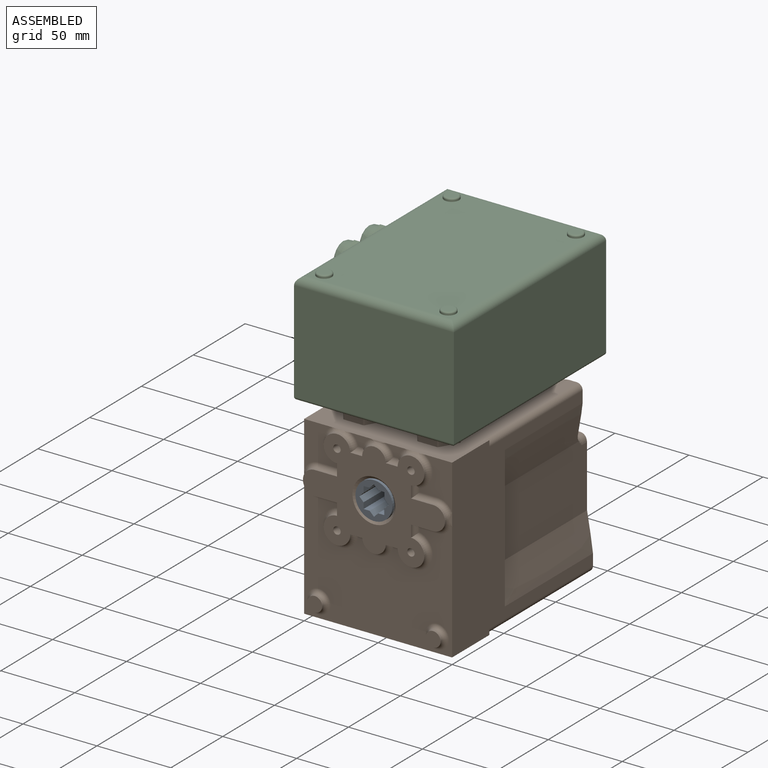
[diagram: assembled view]
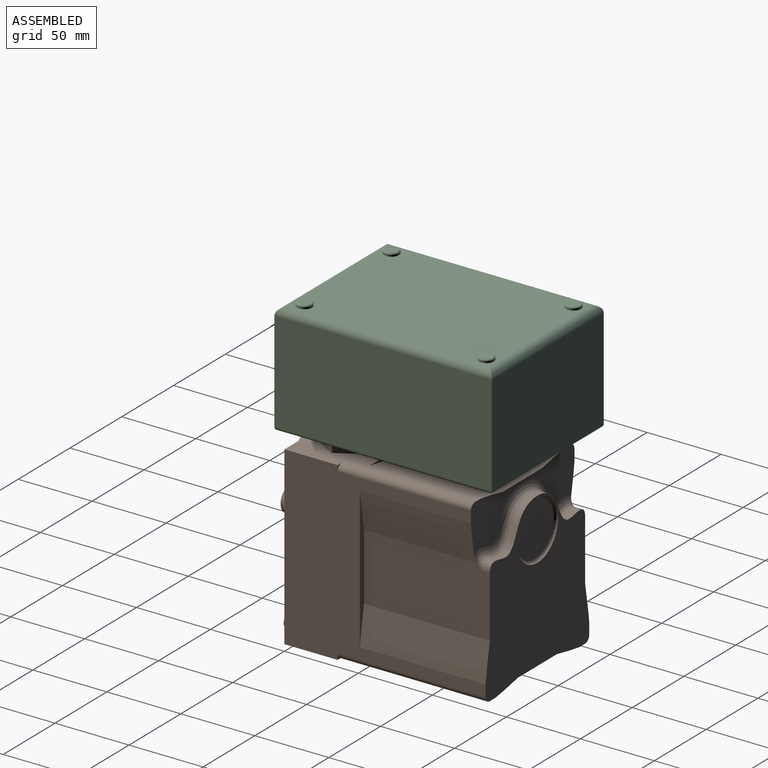
[diagram: assembled view, second angle]
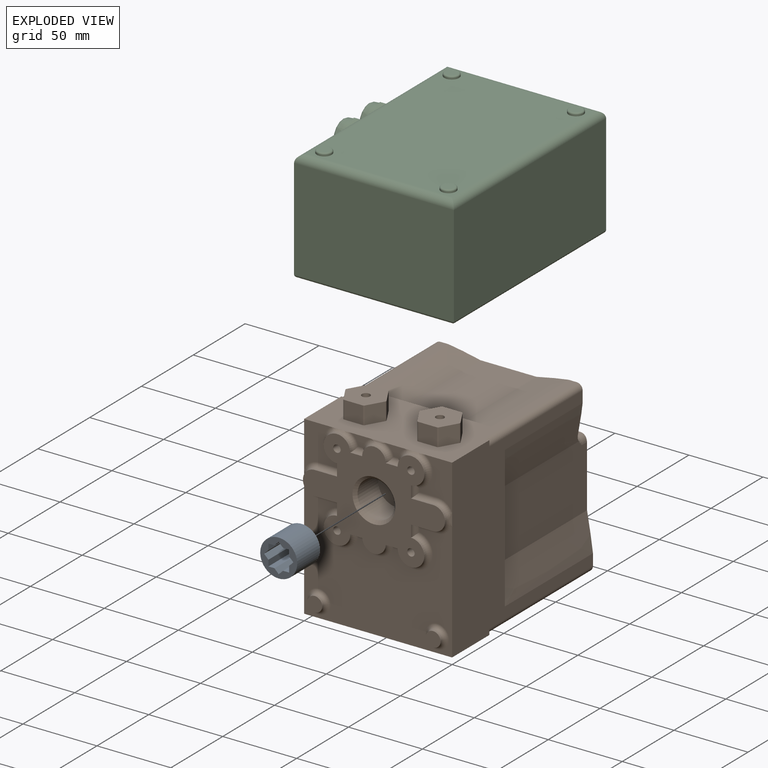
[diagram: exploded view]
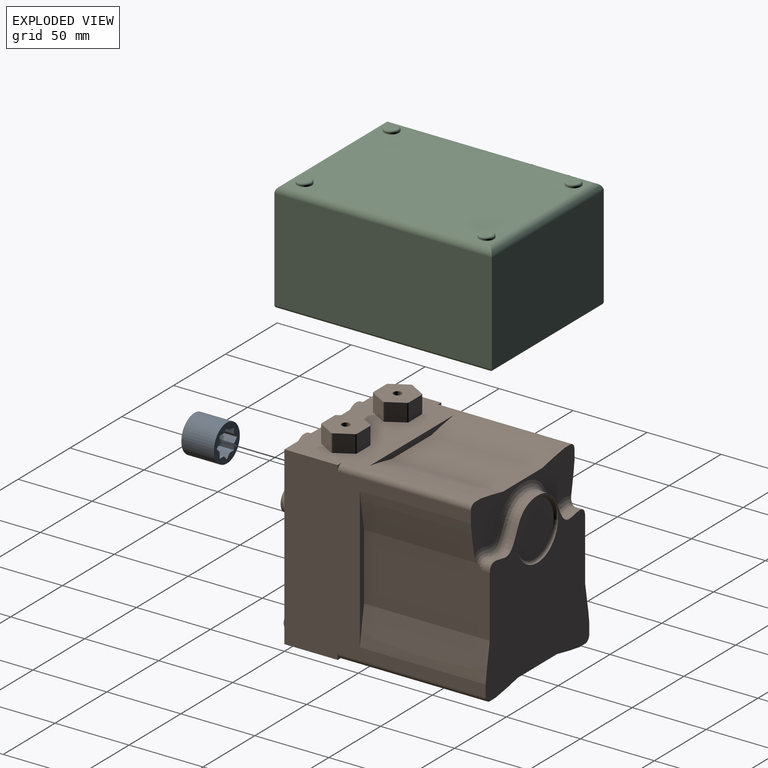
[diagram: exploded view, second angle]
ASSEMBLY  parts=3 mates=2
PART A: 19 faces, bbox 25x22x25 mm
  f0: cylinder r=12.5mm len=25mm, axis (0,1,0), area 1727.9mm2, adj f1,f2
  f1: plane 25x25mm, normal (0,-1,0), area 261.2mm2, adj f0,f3,f4,f5,f6,f7,f8,f9
  f2: plane 25x25mm, normal (0,1,0), area 261.2mm2, adj f0,f3,f4,f5,f6,f7,f8,f9
  f3: plane 22x2.9mm, normal (0.71,0,-0.71), area 90.2mm2, adj f1,f2,f4,f18
  f4: plane 22x4.1mm, normal (0,0,-1), area 90.2mm2, adj f1,f2,f3,f5
  f5: plane 22x4.1mm, normal (1,0,0), area 90.2mm2, adj f1,f2,f4,f6
  f6: plane 22x2.9mm, normal (0.71,0,-0.71), area 90.2mm2, adj f1,f2,f5,f7
  f7: plane 22x2.9mm, normal (0.71,0,0.71), area 90.2mm2, adj f1,f2,f6,f8
  f8: plane 22x4.1mm, normal (1,0,0), area 90.2mm2, adj f1,f2,f7,f9
  f9: plane 22x4.1mm, normal (0,0,1), area 90.2mm2, adj f1,f2,f8,f10
  f10: plane 22x2.9mm, normal (0.71,0,0.71), area 90.2mm2, adj f1,f2,f9,f11
  f11: plane 22x2.9mm, normal (-0.71,0,0.71), area 90.2mm2, adj f1,f2,f10,f12
  f12: plane 22x4.1mm, normal (0,0,1), area 90.2mm2, adj f1,f2,f11,f13
  f13: plane 22x4.1mm, normal (-1,0,0), area 90.2mm2, adj f1,f2,f12,f14
  f14: plane 22x2.9mm, normal (-0.71,0,0.71), area 90.2mm2, adj f1,f2,f13,f15
  f15: plane 22x2.9mm, normal (-0.71,0,-0.71), area 90.2mm2, adj f1,f2,f14,f16
  f16: plane 22x4.1mm, normal (-1,0,0), area 90.2mm2, adj f1,f2,f15,f17
  f17: plane 22x4.1mm, normal (0,0,-1), area 90.2mm2, adj f1,f2,f16,f18
  f18: plane 22x2.9mm, normal (-0.71,0,-0.71), area 90.2mm2, adj f1,f2,f3,f17
PART B: 137 faces, bbox 106.5x143.2x132.6 mm
  f0: plane 30.42x22mm, normal (0,-1,0), area 394.5mm2, adj f4,f5,f123,f125,f127,f129
  f1: plane 100x79.42mm, normal (0,-1,0), area 5349.5mm2, adj f5,f6,f14,f116,f118,f120,f122,f124
  f2: plane 30.42x22mm, normal (0,-1,0), area 394.5mm2, adj f4,f6,f106,f108,f110,f112
  f3: plane 13.78x7mm, normal (0,-1,0), area 47.2mm2, adj f4,f107,f109,f111
  f4: plane 126.29x100.29mm, normal (0,0,1), area 4786.4mm2, adj f0,f2,f3,f5,f6,f9,f10,f15
  f5: plane 136.11x119.11mm, normal (-1,0,0), area 7178.7mm2, adj f0,f1,f4,f7,f12,f13,f14,f16
  f6: plane 136.11x119.11mm, normal (1,0,0), area 7178.7mm2, adj f1,f2,f4,f7,f11,f14,f19,f20
  f7: plane 109.93x100.61mm, normal (0,1,0), area 7234.5mm2, adj f5,f6,f8,f11,f14,f16,f17,f21
  f8: extruded ~85x21.75mm, area 1880.3mm2, adj f7,f14,f18,f32
  f9: extruded ~75x21.74mm, area 1659mm2, adj f4,f10,f31,f50
  f10: plane 81.89x4.6mm, normal (0,1,0), area 231.9mm2, adj f4,f9,f15,f31
  f11: extruded ~85x25.23mm, area 2171.4mm2, adj f6,f7,f20,f30
  f12: extruded ~76.98x25.23mm, area 1921mm2, adj f5,f13,f29,f50,f51
  f13: plane 96.24x4.61mm, normal (0,1,0), area 276.3mm2, adj f5,f12,f16,f29
  f14: plane 136x100mm, normal (0,0,-1), area 5890.5mm2, adj f1,f5,f6,f7,f8,f17,f18,f21
  f15: extruded ~75x21.74mm, area 1659mm2, adj f4,f10,f31,f50
  f16: extruded ~85x25.23mm, area 2171.6mm2, adj f5,f7,f13,f29
  f17: extruded ~85x21.75mm, area 1880.3mm2, adj f7,f14,f18,f32
  f18: plane 81.89x4.6mm, normal (0,1,0), area 231.9mm2, adj f8,f14,f17,f32
  f19: extruded ~76.98x25.23mm, area 1920.9mm2, adj f6,f20,f30,f50,f51
  f20: plane 96.24x4.61mm, normal (0,1,0), area 276.3mm2, adj f6,f11,f19,f30
  f21: cylinder r=4mm len=100mm, axis (0,1,0), area 628.3mm2, adj f5,f7,f14,f22
  f22: plane 4x4mm, normal (0,1,0), area 3.4mm2, adj f5,f14,f21
  f23: cylinder r=4mm len=100mm, axis (0,1,0), area 628.3mm2, adj f6,f7,f14,f24
  f24: plane 4x4mm, normal (0,1,0), area 3.4mm2, adj f6,f14,f23
  f25: cylinder r=4mm len=90mm, axis (0,1,0), area 565.5mm2, adj f4,f6,f26,f50
  f26: plane 4x4mm, normal (0,1,0), area 3.4mm2, adj f4,f6,f25
  f27: cylinder r=4mm len=90mm, axis (0,1,0), area 565.5mm2, adj f4,f5,f28,f50
  f28: plane 4x4mm, normal (0,1,0), area 3.4mm2, adj f4,f5,f27
  f29: plane 85.62x45.8mm, normal (-1,0,0), area 3816.5mm2, adj f7,f12,f13,f16,f49,f51
  f30: plane 85.63x45.81mm, normal (1,0,0), area 3816.7mm2, adj f7,f11,f19,f20,f49,f51
  f31: plane 75x37.8mm, normal (0,0,1), area 2834.9mm2, adj f9,f10,f15,f50
  f32: plane 85x37.8mm, normal (0,0,-1), area 3212.8mm2, adj f7,f8,f17,f18
  f33: plane 36x36mm, normal (0,1,0), area 1017.9mm2, adj f34
  f34: torus R=18mm, axis (0,1,0), area 380.4mm2, adj f7,f33
  f35: plane 12x11mm, normal (0.87,0.5,0), area 152.4mm2, adj f4,f41,f62,f67
  f36: plane 12.7x12mm, normal (0,1,0), area 152.4mm2, adj f4,f41,f66,f67
  f37: plane 12x11mm, normal (-0.87,0.5,0), area 152.4mm2, adj f4,f41,f65,f66
  f38: plane 12x11mm, normal (-0.87,-0.5,0), area 152.4mm2, adj f4,f41,f64,f65
  f39: plane 12.7x12mm, normal (0,-1,0), area 152.4mm2, adj f4,f41,f63,f64
  f40: plane 12x11mm, normal (0.87,-0.5,0), area 152.4mm2, adj f4,f41,f62,f63
  f41: plane 27.4x24mm, normal (0,0,1), area 474.7mm2, adj f35,f36,f37,f38,f39,f40,f55,f62
  f42: plane 12x11mm, normal (0.87,0.5,0), area 152.4mm2, adj f4,f48,f56,f61
  f43: plane 12.7x12mm, normal (0,1,0), area 152.4mm2, adj f4,f48,f56,f57
  f44: plane 12x11mm, normal (-0.87,0.5,0), area 152.4mm2, adj f4,f48,f57,f58
  f45: plane 12x11mm, normal (-0.87,-0.5,0), area 152.4mm2, adj f4,f48,f58,f59
  f46: plane 12.7x12mm, normal (0,-1,0), area 152.4mm2, adj f4,f48,f59,f60
  f47: plane 12x11mm, normal (0.87,-0.5,0), area 152.4mm2, adj f4,f48,f60,f61
  f48: plane 27.4x24mm, normal (0,0,1), area 474.7mm2, adj f42,f43,f44,f45,f46,f47,f53,f56
  f49: extruded ~92x29.39mm, area 614.5mm2, adj f7,f29,f30,f51
  f50: plane 100.44x32.57mm, normal (0,1,0), area 1791.5mm2, adj f4,f5,f6,f9,f12,f15,f19,f25
  f51: bspline ~102.13x35.46mm, area 936mm2, adj f12,f19,f29,f30,f49,f50
  f52: cone r=0mm half-angle=59deg, axis (0,0,1), area 27.7mm2, adj f53
  f53: cylinder r=2.75mm len=14.4mm, axis (0,0,1), area 248.8mm2, adj f48,f52
  f54: cone r=0mm half-angle=59deg, axis (0,0,1), area 27.7mm2, adj f55
  f55: cylinder r=2.75mm len=14.4mm, axis (0,0,1), area 248.8mm2, adj f41,f54
  f56: cylinder r=1mm len=12mm, axis (0,0,-1), area 12.6mm2, adj f4,f42,f43,f48
  f57: cylinder r=1mm len=12mm, axis (0,0,-1), area 12.6mm2, adj f4,f43,f44,f48
  f58: cylinder r=1mm len=12mm, axis (0,0,-1), area 12.6mm2, adj f4,f44,f45,f48
  f59: cylinder r=1mm len=12mm, axis (0,0,-1), area 12.6mm2, adj f4,f45,f46,f48
  f60: cylinder r=1mm len=12mm, axis (0,0,-1), area 12.6mm2, adj f4,f46,f47,f48
  f61: cylinder r=1mm len=12mm, axis (0,0,-1), area 12.6mm2, adj f4,f42,f47,f48
  f62: cylinder r=1mm len=12mm, axis (0,0,-1), area 12.6mm2, adj f4,f35,f40,f41
  f63: cylinder r=1mm len=12mm, axis (0,0,-1), area 12.6mm2, adj f4,f39,f40,f41
  f64: cylinder r=1mm len=12mm, axis (0,0,-1), area 12.6mm2, adj f4,f38,f39,f41
  f65: cylinder r=1mm len=12mm, axis (0,0,-1), area 12.6mm2, adj f4,f37,f38,f41
  f66: cylinder r=1mm len=12mm, axis (0,0,-1), area 12.6mm2, adj f4,f36,f37,f41
  f67: cylinder r=1mm len=12mm, axis (0,0,-1), area 12.6mm2, adj f4,f35,f36,f41
  f68: plane 8x1mm, normal (0,0,1), area 8mm2, adj f69,f89,f104,f117
  f69: cylinder r=8mm len=16mm, axis (0,-1,0), area 25.1mm2, adj f68,f70,f104,f111,f113,f115
  f70: plane 8x1mm, normal (0,0,1), area 8mm2, adj f69,f71,f104,f109
  f71: cylinder r=9mm len=18mm, axis (0,-1,0), area 46.5mm2, adj f70,f72,f104,f105,f106,f107
  f72: plane 8x1mm, normal (1,0,0), area 8mm2, adj f71,f73,f104,f108
  f73: plane 15x1mm, normal (0,0,1), area 15mm2, adj f72,f74,f104,f110
  f74: cylinder r=8mm len=16mm, axis (0,-1,0), area 25.1mm2, adj f73,f75,f104,f112,f114,f116
  f75: plane 15x1mm, normal (0,0,-1), area 15mm2, adj f74,f76,f104,f118
  f76: plane 8x1mm, normal (1,0,0), area 8mm2, adj f75,f77,f104,f120
  f77: cylinder r=9mm len=18mm, axis (0,-1,0), area 42.4mm2, adj f76,f78,f104,f122
  f78: plane 8.02x1mm, normal (0,0,-1), area 8mm2, adj f77,f79,f104,f124
  f79: cylinder r=8mm len=15.97mm, axis (0,-1,0), area 24.1mm2, adj f78,f80,f104,f126
  f80: plane 8.02x1mm, normal (0,0,-1), area 8mm2, adj f79,f81,f104,f128
  f81: cylinder r=9mm len=18mm, axis (0,-1,0), area 42.4mm2, adj f80,f82,f104,f130
  f82: plane 8x1mm, normal (-1,0,0), area 8mm2, adj f81,f83,f104,f132
  f83: plane 15x1mm, normal (0,0,-1), area 15mm2, adj f82,f84,f104,f134
  f84: cylinder r=8mm len=16mm, axis (0,-1,0), area 25.1mm2, adj f83,f85,f104,f129,f131,f133
  f85: plane 15x1mm, normal (0,0,1), area 15mm2, adj f84,f86,f104,f127
  f86: plane 8x1mm, normal (-1,0,0), area 8mm2, adj f85,f89,f104,f125
  f87: cylinder r=5mm len=10mm, axis (0,-1,0), area 31.4mm2, adj f92,f135
  f88: cylinder r=5mm len=10mm, axis (0,-1,0), area 31.4mm2, adj f91,f136
  f89: cylinder r=9mm len=18mm, axis (0,-1,0), area 46.5mm2, adj f68,f86,f104,f119,f121,f123
  f90: plane 13.78x7mm, normal (0,-1,0), area 47.2mm2, adj f4,f115,f117,f119
  f91: plane 10x10mm, normal (0,-1,0), area 78.5mm2, adj f88
  f92: plane 10x10mm, normal (0,-1,0), area 78.5mm2, adj f87
  f93: plane 25x25mm, normal (0,-1,0), area 490.9mm2, adj f94
  f94: cylinder r=12.5mm len=25mm, axis (0,-1,0), area 1570.8mm2, adj f93,f99
  f95: cone r=0mm half-angle=59deg, axis (0,-1,0), area 22.9mm2, adj f100
  f96: cone r=0mm half-angle=59deg, axis (0,-1,0), area 22.9mm2, adj f101
  f97: cone r=0mm half-angle=59deg, axis (0,-1,0), area 22.9mm2, adj f102
  f98: cone r=0mm half-angle=59deg, axis (0,-1,0), area 22.9mm2, adj f103
  f99: cone r=12.5mm half-angle=45deg, axis (0,-1,0), area 239.9mm2, adj f94,f104
  f100: cylinder r=2.5mm len=15mm, axis (0,-1,0), area 235.6mm2, adj f95,f104
  f101: cylinder r=2.5mm len=15mm, axis (0,-1,0), area 235.6mm2, adj f96,f104
  f102: cylinder r=2.5mm len=15mm, axis (0,-1,0), area 235.6mm2, adj f97,f104
  f103: cylinder r=2.5mm len=15mm, axis (0,-1,0), area 235.6mm2, adj f98,f104
  f104: plane 96x68mm, normal (0,-1,0), area 3398.5mm2, adj f68,f69,f70,f71,f72,f73,f74,f75
  f105: bspline ~14x3.21mm, area 36.9mm2, adj f4,f71,f106,f107
  f106: torus R=12mm, axis (0,-1,0), area 115.2mm2, adj f2,f71,f105,f108
  f107: torus R=12mm, axis (0,-1,0), area 40.5mm2, adj f3,f71,f105,f109
  f108: cylinder r=3mm len=8mm, axis (0,0,-1), area 24.5mm2, adj f2,f72,f106,f110
  f109: cylinder r=3mm len=8mm, axis (1,0,0), area 25.4mm2, adj f3,f70,f107,f111
  f110: cylinder r=3mm len=15mm, axis (1,0,0), area 63.6mm2, adj f2,f73,f108,f112
  f111: torus R=11mm, axis (0,-1,0), area 42.6mm2, adj f3,f69,f109,f113
  f112: torus R=11mm, axis (0,-1,0), area 48.9mm2, adj f2,f74,f110,f114
  f113: bspline ~10.49x3.43mm, area 30.6mm2, adj f4,f69,f111,f115
  f114: bspline ~10.49x3.43mm, area 30.6mm2, adj f6,f74,f112,f116
  f115: torus R=11mm, axis (0,-1,0), area 42.6mm2, adj f69,f90,f113,f117
  f116: torus R=11mm, axis (0,-1,0), area 48.9mm2, adj f1,f74,f114,f118
  f117: cylinder r=3mm len=8mm, axis (1,0,0), area 25.4mm2, adj f68,f90,f115,f119
  f118: cylinder r=3mm len=15mm, axis (-1,0,0), area 63.6mm2, adj f1,f75,f116,f120
  f119: torus R=12mm, axis (0,-1,0), area 40.5mm2, adj f89,f90,f117,f121
  f120: cylinder r=3mm len=8mm, axis (0,0,-1), area 24.5mm2, adj f1,f76,f118,f122
  f121: bspline ~14x3.21mm, area 36.9mm2, adj f4,f89,f119,f123
  f122: torus R=12mm, axis (0,-1,0), area 211.4mm2, adj f1,f77,f120,f124
  f123: torus R=12mm, axis (0,-1,0), area 115.2mm2, adj f0,f89,f121,f125
  f124: cylinder r=3mm len=8.02mm, axis (-1,0,0), area 25.8mm2, adj f1,f78,f122,f126
  f125: cylinder r=3mm len=8mm, axis (0,0,1), area 24.5mm2, adj f0,f86,f123,f127
  f126: torus R=11mm, axis (0,-1,0), area 117.4mm2, adj f1,f79,f124,f128
  f127: cylinder r=3mm len=15mm, axis (1,0,0), area 63.6mm2, adj f0,f85,f125,f129
  f128: cylinder r=3mm len=8.02mm, axis (-1,0,0), area 25.8mm2, adj f1,f80,f126,f130
  f129: torus R=11mm, axis (0,-1,0), area 48.9mm2, adj f0,f84,f127,f131
  f130: torus R=12mm, axis (0,-1,0), area 211.4mm2, adj f1,f81,f128,f132
  f131: bspline ~10.49x3.43mm, area 30.6mm2, adj f5,f84,f129,f133
  f132: cylinder r=3mm len=8mm, axis (0,0,1), area 24.5mm2, adj f1,f82,f130,f134
  f133: torus R=11mm, axis (0,-1,0), area 48.9mm2, adj f1,f84,f131,f134
  f134: cylinder r=3mm len=15mm, axis (-1,0,0), area 63.6mm2, adj f1,f83,f132,f133
  f135: torus R=8mm, axis (0,-1,0), area 180.3mm2, adj f1,f87
  f136: torus R=8mm, axis (0,-1,0), area 180.3mm2, adj f1,f88
PART C: 91 faces, bbox 147x133x77 mm
  f0: plane 147x68mm, normal (0,-1,0), area 9248.3mm2, adj f1,f3,f10,f11,f12,f13,f14,f15
  f1: plane 108x68mm, normal (1,0,0), area 7344mm2, adj f0,f2,f71,f75
  f2: plane 147x68mm, normal (0,1,0), area 9996mm2, adj f1,f3,f72,f76
  f3: plane 108x68mm, normal (-1,0,0), area 7344mm2, adj f0,f2,f74,f78
  f4: plane 143x104mm, normal (0,0,-1), area 14799.4mm2, adj f7,f9,f75,f76,f77,f78
  f5: plane 137x98mm, normal (0,0,1), area 13111.8mm2, adj f71,f72,f73,f74,f79,f81,f83,f85
  f6: cone r=0mm half-angle=59deg, axis (0,0,-1), area 42.4mm2, adj f7
  f7: cylinder r=3.4mm len=15.75mm, axis (0,0,-1), area 336.5mm2, adj f4,f6
  f8: cone r=0mm half-angle=59deg, axis (0,0,-1), area 42.4mm2, adj f9
  f9: cylinder r=3.4mm len=15.75mm, axis (0,0,-1), area 336.5mm2, adj f4,f8
  f10: plane 10.85x5mm, normal (-1,0,0), area 54.2mm2, adj f0,f16,f30,f34
  f11: plane 9.39x5.42mm, normal (-0.5,0,-0.87), area 54.2mm2, adj f0,f16,f33,f34
  f12: plane 9.39x5.42mm, normal (0.5,0,-0.87), area 54.2mm2, adj f0,f16,f32,f33
  f13: plane 11.42x5mm, normal (1,0,0), area 57.1mm2, adj f0,f14,f16,f32
  f14: plane 9.89x5.71mm, normal (0.5,0,0.87), area 57.1mm2, adj f0,f13,f16,f31
  f15: plane 9.39x5.42mm, normal (-0.5,0,0.87), area 54.2mm2, adj f0,f16,f30,f31
  f16: plane 23.69x20.78mm, normal (0,-1,0), area 119.4mm2, adj f10,f11,f12,f13,f14,f15,f30,f31
  f17: plane 10.85x5mm, normal (-1,0,0), area 54.2mm2, adj f0,f23,f24,f29
  f18: plane 9.39x5.42mm, normal (-0.5,0,-0.87), area 54.2mm2, adj f0,f23,f24,f25
  f19: plane 9.39x5.42mm, normal (0.5,0,-0.87), area 54.2mm2, adj f0,f23,f25,f26
  f20: plane 10.85x5mm, normal (1,0,0), area 54.2mm2, adj f0,f23,f26,f27
  f21: plane 9.39x5.42mm, normal (0.5,0,0.87), area 54.2mm2, adj f0,f23,f27,f28
  f22: plane 9.39x5.42mm, normal (-0.5,0,0.87), area 54.2mm2, adj f0,f23,f28,f29
  f23: plane 23.69x20.78mm, normal (0,-1,0), area 119.3mm2, adj f17,f18,f19,f20,f21,f22,f24,f25
  f24: cylinder r=1mm len=5mm, axis (0,1,0), area 5.2mm2, adj f0,f17,f18,f23
  f25: cylinder r=1mm len=5mm, axis (0,1,0), area 5.2mm2, adj f0,f18,f19,f23
  f26: cylinder r=1mm len=5mm, axis (0,1,0), area 5.2mm2, adj f0,f19,f20,f23
  f27: cylinder r=1mm len=5mm, axis (0,1,0), area 5.2mm2, adj f0,f20,f21,f23
  f28: cylinder r=1mm len=5mm, axis (0,1,0), area 5.2mm2, adj f0,f21,f22,f23
  f29: cylinder r=1mm len=5mm, axis (0,1,0), area 5.2mm2, adj f0,f17,f22,f23
  f30: cylinder r=1mm len=5mm, axis (0,1,0), area 5.2mm2, adj f0,f10,f15,f16
  f31: cylinder r=1mm len=5mm, axis (0,1,0), area 5.2mm2, adj f0,f14,f15,f16
  f32: cylinder r=1mm len=5mm, axis (0,1,0), area 5.2mm2, adj f0,f12,f13,f16
  f33: cylinder r=1mm len=5mm, axis (0,1,0), area 5.2mm2, adj f0,f11,f12,f16
  f34: cylinder r=1mm len=5mm, axis (0,1,0), area 5.2mm2, adj f0,f10,f11,f16
  f35: cylinder r=9mm len=18mm, axis (0,1,0), area 113.1mm2, adj f16,f44
  f36: cylinder r=9mm len=18mm, axis (0,1,0), area 113.1mm2, adj f23,f52
  f37: plane 10.85x10mm, normal (1,0,0), area 108.5mm2, adj f43,f44,f65,f70
  f38: plane 10x9.39mm, normal (0.5,0,0.87), area 108.5mm2, adj f43,f44,f65,f66
  f39: plane 10x9.39mm, normal (-0.5,0,0.87), area 108.5mm2, adj f43,f44,f66,f67
  f40: plane 10.85x10mm, normal (-1,0,0), area 108.5mm2, adj f43,f44,f67,f68
  f41: plane 10x9.39mm, normal (-0.5,0,-0.87), area 108.5mm2, adj f43,f44,f68,f69
  f42: plane 10x9.39mm, normal (0.5,0,-0.87), area 108.5mm2, adj f43,f44,f69,f70
  f43: plane 23.69x20.78mm, normal (0,-1,0), area 59.6mm2, adj f37,f38,f39,f40,f41,f42,f53,f65
  f44: plane 23.69x20.78mm, normal (0,1,0), area 119.3mm2, adj f35,f37,f38,f39,f40,f41,f42,f65
  f45: plane 10.85x10mm, normal (1,0,0), area 108.5mm2, adj f51,f52,f59,f64
  f46: plane 10x9.39mm, normal (0.5,0,0.87), area 108.5mm2, adj f51,f52,f59,f60
  f47: plane 10x9.39mm, normal (-0.5,0,0.87), area 108.5mm2, adj f51,f52,f60,f61
  f48: plane 10.85x10mm, normal (-1,0,0), area 108.5mm2, adj f51,f52,f61,f62
  f49: plane 10x9.39mm, normal (-0.5,0,-0.87), area 108.5mm2, adj f51,f52,f62,f63
  f50: plane 10x9.39mm, normal (0.5,0,-0.87), area 108.5mm2, adj f51,f52,f63,f64
  f51: plane 23.69x20.78mm, normal (0,-1,0), area 59.6mm2, adj f45,f46,f47,f48,f49,f50,f55,f59
  f52: plane 23.69x20.78mm, normal (0,1,0), area 119.3mm2, adj f36,f45,f46,f47,f48,f49,f50,f59
  f53: cylinder r=10mm len=20mm, axis (0,1,0), area 188.5mm2, adj f43,f58
  f54: plane 10.01x10.01mm, normal (0,-1,0), area 78.5mm2, adj f58
  f55: cylinder r=10mm len=20mm, axis (0,1,0), area 188.5mm2, adj f51,f57
  f56: plane 10.01x10.01mm, normal (0,-1,0), area 78.5mm2, adj f57
  f57: bspline ~20.52x20.52mm, area 473mm2, adj f55,f56
  f58: bspline ~20.52x20.52mm, area 473mm2, adj f53,f54
  f59: cylinder r=1mm len=10mm, axis (0,1,0), area 10.5mm2, adj f45,f46,f51,f52
  f60: cylinder r=1mm len=10mm, axis (0,1,0), area 10.5mm2, adj f46,f47,f51,f52
  f61: cylinder r=1mm len=10mm, axis (0,1,0), area 10.5mm2, adj f47,f48,f51,f52
  f62: cylinder r=1mm len=10mm, axis (0,1,0), area 10.5mm2, adj f48,f49,f51,f52
  f63: cylinder r=1mm len=10mm, axis (0,1,0), area 10.5mm2, adj f49,f50,f51,f52
  f64: cylinder r=1mm len=10mm, axis (0,1,0), area 10.5mm2, adj f45,f50,f51,f52
  f65: cylinder r=1mm len=10mm, axis (0,1,0), area 10.5mm2, adj f37,f38,f43,f44
  f66: cylinder r=1mm len=10mm, axis (0,1,0), area 10.5mm2, adj f38,f39,f43,f44
  f67: cylinder r=1mm len=10mm, axis (0,1,0), area 10.5mm2, adj f39,f40,f43,f44
  f68: cylinder r=1mm len=10mm, axis (0,1,0), area 10.5mm2, adj f40,f41,f43,f44
  f69: cylinder r=1mm len=10mm, axis (0,1,0), area 10.5mm2, adj f41,f42,f43,f44
  f70: cylinder r=1mm len=10mm, axis (0,1,0), area 10.5mm2, adj f37,f42,f43,f44
  f71: cylinder r=5mm len=108mm, axis (0,1,0), area 809mm2, adj f1,f5,f72,f73
  f72: cylinder r=5mm len=147mm, axis (-1,0,0), area 1115.3mm2, adj f2,f5,f71,f74
  f73: cylinder r=5mm len=147mm, axis (1,0,0), area 1115.3mm2, adj f0,f5,f71,f74
  f74: cylinder r=5mm len=108mm, axis (0,-1,0), area 809mm2, adj f3,f5,f72,f73
  f75: cylinder r=2mm len=108mm, axis (0,-1,0), area 333mm2, adj f1,f4,f76,f77
  f76: cylinder r=2mm len=147mm, axis (1,0,0), area 455.5mm2, adj f2,f4,f75,f78
  f77: cylinder r=2mm len=147mm, axis (-1,0,0), area 455.5mm2, adj f0,f4,f75,f78
  f78: cylinder r=2mm len=108mm, axis (0,1,0), area 333mm2, adj f3,f4,f76,f77
  f79: cylinder r=5mm len=10mm, axis (0,0,-1), area 31.4mm2, adj f5,f90
  f80: plane 8x8mm, normal (0,0,1), area 50.3mm2, adj f90
  f81: cylinder r=5mm len=10mm, axis (0,0,-1), area 31.4mm2, adj f5,f89
  f82: plane 8x8mm, normal (0,0,1), area 50.3mm2, adj f89
  f83: cylinder r=5mm len=10mm, axis (0,0,-1), area 31.4mm2, adj f5,f88
  f84: plane 8x8mm, normal (0,0,1), area 50.3mm2, adj f88
  f85: cylinder r=5mm len=10mm, axis (0,0,-1), area 31.4mm2, adj f5,f87
  f86: plane 8x8mm, normal (0,0,1), area 50.3mm2, adj f87
  f87: torus R=4mm, axis (0,0,1), area 45.8mm2, adj f85,f86
  f88: torus R=4mm, axis (0,0,1), area 45.8mm2, adj f83,f84
  f89: torus R=4mm, axis (0,0,1), area 45.8mm2, adj f81,f82
  f90: torus R=4mm, axis (0,0,1), area 45.8mm2, adj f79,f80
PLACE A t=(0,18,84)mm
PLACE B t=(0,-4,59.5)mm
PLACE C rot(axis=(0,0,-1),90deg) t=(0,69.5,206)mm
MATE fastened C.f6 <-> B.f54  axis (0,0,-1) through (25,24,131)mm
MATE fastened A.f0 <-> B.f94  axis (0,1,0) through (0,18,84)mm
